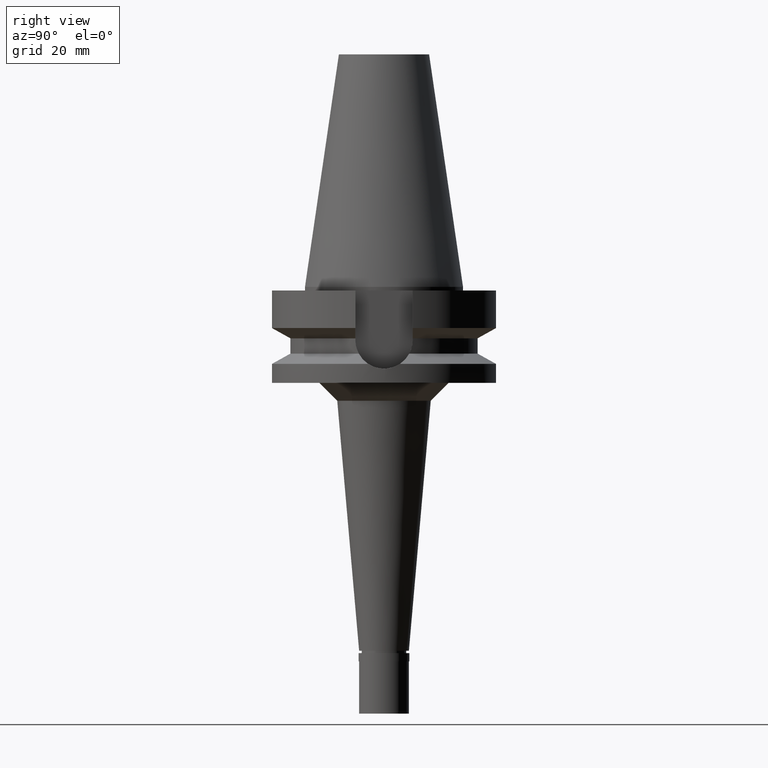
[diagram: clean part render]
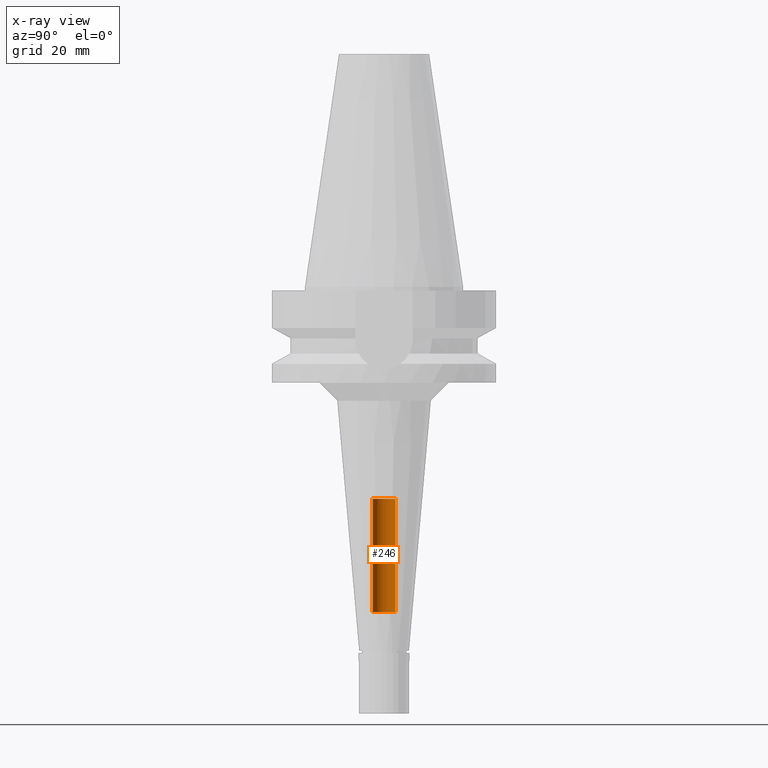
[diagram: x-ray — body ghosted, one internal face saturated and labeled with its STEP entity id]
A machine part, right view, then the same camera in x-ray: the body is ghosted and one INTERNAL B-rep face — a face not visible from any outside direction — is saturated and labeled: STEP entity #246.
In plain terms, the highlighted cylindrical surface (edge-blend (fillet) strip) has radius 3.2 mm, axis along (0, 0, -1).
Its self-contained STEP definition (entity closure, byte-faithful):
#16 = VERTEX_POINT ( 'NONE', #2082 ) ;
#213 = LINE ( 'NONE', #2492, #2821 ) ;
#232 = CARTESIAN_POINT ( 'NONE',  ( 0.0000000000000000000, -3.200000000000000178, -91.50000000000000000 ) ) ;
#246 = ADVANCED_FACE ( 'NONE', ( #1995 ), #1708, .F. ) ;
#262 = CARTESIAN_POINT ( 'NONE',  ( 0.0000000000000000000, 2.136641270472000125E-14, -59.60000000000000142 ) ) ;
#365 = CARTESIAN_POINT ( 'NONE',  ( 0.0000000000000000000, 3.200000000000000178, -59.60000000000000142 ) ) ;
#580 = CARTESIAN_POINT ( 'NONE',  ( 0.0000000000000000000, -3.200000000000000178, -91.50000000000000000 ) ) ;
#602 = EDGE_CURVE ( 'NONE', #1828, #16, #1380, .T. ) ;
#666 = DIRECTION ( 'NONE',  ( 0.0000000000000000000, -1.000000000000000000, 0.0000000000000000000 ) ) ;
#815 = VERTEX_POINT ( 'NONE', #232 ) ;
#856 = EDGE_CURVE ( 'NONE', #815, #2887, #1134, .T. ) ;
#936 = CARTESIAN_POINT ( 'NONE',  ( 0.0000000000000000000, 2.136641270472000125E-14, -91.50000000000000000 ) ) ;
#1134 = CIRCLE ( 'NONE', #1904, 3.200000000000000178 ) ;
#1181 = DIRECTION ( 'NONE',  ( 0.0000000000000000000, 1.000000000000000000, 0.0000000000000000000 ) ) ;
#1183 = AXIS2_PLACEMENT_3D ( 'NONE', #1256, #2169, #1741 ) ;
#1236 = EDGE_CURVE ( 'NONE', #2887, #1828, #213, .T. ) ;
#1256 = CARTESIAN_POINT ( 'NONE',  ( 0.0000000000000000000, 2.136641270472000125E-14, 74.46999999999999886 ) ) ;
#1380 = CIRCLE ( 'NONE', #2625, 3.200000000000000178 ) ;
#1595 = EDGE_CURVE ( 'NONE', #815, #16, #2646, .T. ) ;
#1708 = CYLINDRICAL_SURFACE ( 'NONE', #1183, 3.200000000000000178 ) ;
#1741 = DIRECTION ( 'NONE',  ( 0.0000000000000000000, -1.000000000000000000, 0.0000000000000000000 ) ) ;
#1769 = VECTOR ( 'NONE', #2838, 1000.000000000000000 ) ;
#1828 = VERTEX_POINT ( 'NONE', #365 ) ;
#1904 = AXIS2_PLACEMENT_3D ( 'NONE', #936, #2309, #666 ) ;
#1956 = ORIENTED_EDGE ( 'NONE', *, *, #602, .T. ) ;
#1968 = CARTESIAN_POINT ( 'NONE',  ( 0.0000000000000000000, 3.200000000000000178, -91.50000000000000000 ) ) ;
#1995 = FACE_OUTER_BOUND ( 'NONE', #2583, .T. ) ;
#2058 = ORIENTED_EDGE ( 'NONE', *, *, #856, .T. ) ;
#2059 = ORIENTED_EDGE ( 'NONE', *, *, #1595, .F. ) ;
#2082 = CARTESIAN_POINT ( 'NONE',  ( 0.0000000000000000000, -3.200000000000000178, -59.60000000000000142 ) ) ;
#2169 = DIRECTION ( 'NONE',  ( 0.0000000000000000000, 0.0000000000000000000, -1.000000000000000000 ) ) ;
#2309 = DIRECTION ( 'NONE',  ( 0.0000000000000000000, 0.0000000000000000000, -1.000000000000000000 ) ) ;
#2319 = DIRECTION ( 'NONE',  ( 0.0000000000000000000, 0.0000000000000000000, 1.000000000000000000 ) ) ;
#2478 = DIRECTION ( 'NONE',  ( 0.0000000000000000000, 0.0000000000000000000, 1.000000000000000000 ) ) ;
#2492 = CARTESIAN_POINT ( 'NONE',  ( 0.0000000000000000000, 3.200000000000000178, -91.50000000000000000 ) ) ;
#2583 = EDGE_LOOP ( 'NONE', ( #1956, #2059, #2058, #2647 ) ) ;
#2625 = AXIS2_PLACEMENT_3D ( 'NONE', #262, #2319, #1181 ) ;
#2646 = LINE ( 'NONE', #580, #1769 ) ;
#2647 = ORIENTED_EDGE ( 'NONE', *, *, #1236, .T. ) ;
#2821 = VECTOR ( 'NONE', #2478, 1000.000000000000000 ) ;
#2838 = DIRECTION ( 'NONE',  ( 0.0000000000000000000, 0.0000000000000000000, 1.000000000000000000 ) ) ;
#2887 = VERTEX_POINT ( 'NONE', #1968 ) ;